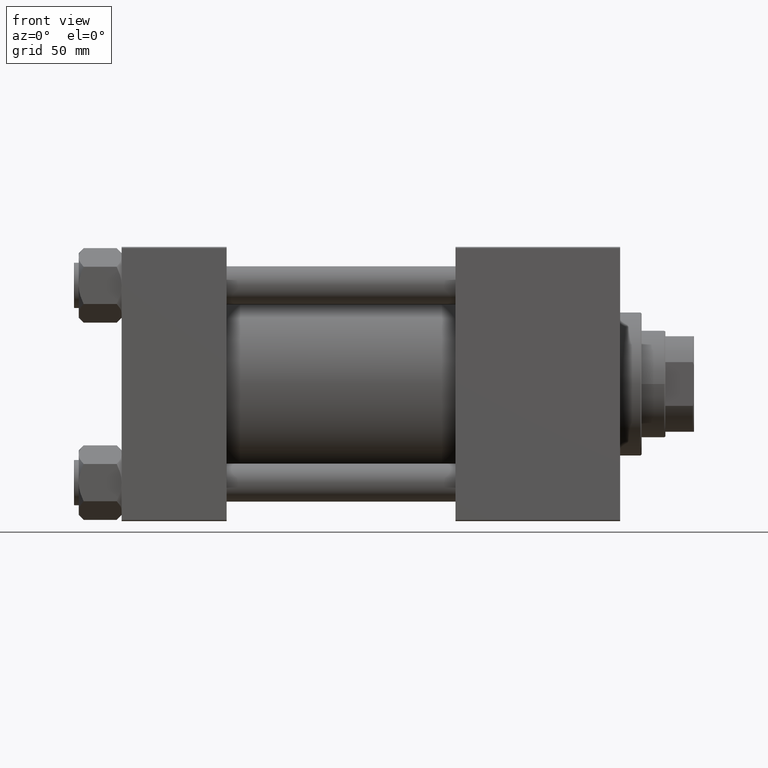
[diagram: clean part render]
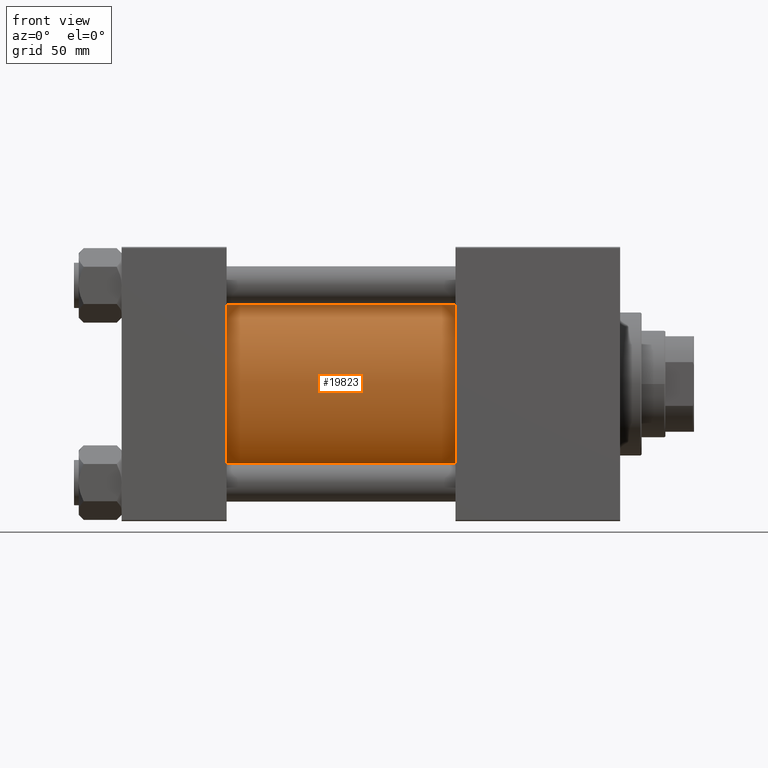
[diagram: same view with one face highlighted and labeled with its STEP entity id]
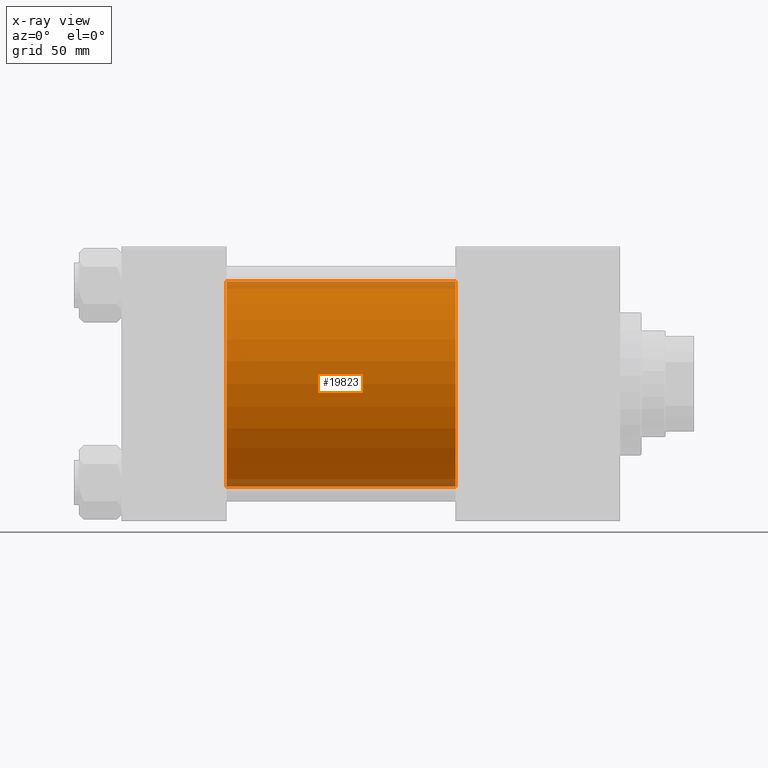
[diagram: x-ray of the same camera — body ghosted, the highlighted face saturated]
A machine part, front view. The second image highlights one B-rep face of the part: STEP entity #19823.
The next image is the same camera in x-ray: the body ghosted, the highlighted face saturated — about 7% of this face is hidden behind the body in this view.
In plain terms, the highlighted cylindrical surface (partial cylindrical patch) has radius 43 mm, axis along (-1, -0, -0).
Its self-contained STEP definition (entity closure, byte-faithful):
#2070 = CARTESIAN_POINT ( 'NONE',  ( 140.0000000000000000, -2.602085213965210642E-15, 0.000000000000000000 ) ) ;
#2189 = AXIS2_PLACEMENT_3D ( 'NONE', #6541, #26025, #33999 ) ;
#4545 = CARTESIAN_POINT ( 'NONE',  ( 44.00000000000000000, -2.602085213965210642E-15, 0.000000000000000000 ) ) ;
#5167 = EDGE_CURVE ( 'NONE', #26153, #25468, #7427, .T. ) ;
#6541 = CARTESIAN_POINT ( 'NONE',  ( 140.0000000000000000, -2.602085213965210642E-15, 0.000000000000000000 ) ) ;
#6915 = ORIENTED_EDGE ( 'NONE', *, *, #28298, .F. ) ;
#7427 = LINE ( 'NONE', #27942, #18612 ) ;
#9211 = VERTEX_POINT ( 'NONE', #45285 ) ;
#10968 = VERTEX_POINT ( 'NONE', #27021 ) ;
#11006 = DIRECTION ( 'NONE',  ( -1.000000000000000000, -0.000000000000000000, -0.000000000000000000 ) ) ;
#11755 = EDGE_LOOP ( 'NONE', ( #13839, #6915, #37044, #46581 ) ) ;
#12175 = DIRECTION ( 'NONE',  ( -1.000000000000000000, -0.000000000000000000, -0.000000000000000000 ) ) ;
#13839 = ORIENTED_EDGE ( 'NONE', *, *, #5167, .F. ) ;
#16591 = DIRECTION ( 'NONE',  ( 0.000000000000000000, 0.000000000000000000, 1.000000000000000000 ) ) ;
#17658 = VECTOR ( 'NONE', #12175, 1000.000000000000000 ) ;
#18612 = VECTOR ( 'NONE', #39756, 1000.000000000000000 ) ;
#19823 = ADVANCED_FACE ( 'NONE', ( #21804 ), #21551, .T. ) ;
#20436 = DIRECTION ( 'NONE',  ( 1.000000000000000000, -0.000000000000000000, 0.000000000000000000 ) ) ;
#21551 = CYLINDRICAL_SURFACE ( 'NONE', #33756, 43.00000000000000000 ) ;
#21804 = FACE_OUTER_BOUND ( 'NONE', #11755, .T. ) ;
#22903 = CARTESIAN_POINT ( 'NONE',  ( 44.00000000000000000, 2.663896022368408223E-15, -43.00000000000000000 ) ) ;
#25468 = VERTEX_POINT ( 'NONE', #22903 ) ;
#26025 = DIRECTION ( 'NONE',  ( 1.000000000000000000, 0.000000000000000000, 0.000000000000000000 ) ) ;
#26153 = VERTEX_POINT ( 'NONE', #37368 ) ;
#27021 = CARTESIAN_POINT ( 'NONE',  ( 140.0000000000000000, -2.602085213965210642E-15, 43.00000000000000000 ) ) ;
#27942 = CARTESIAN_POINT ( 'NONE',  ( 140.0000000000000000, 2.663896022368408223E-15, -43.00000000000000000 ) ) ;
#28298 = EDGE_CURVE ( 'NONE', #10968, #26153, #34181, .T. ) ;
#30035 = DIRECTION ( 'NONE',  ( 0.000000000000000000, 0.000000000000000000, 1.000000000000000000 ) ) ;
#33756 = AXIS2_PLACEMENT_3D ( 'NONE', #2070, #11006, #30035 ) ;
#33999 = DIRECTION ( 'NONE',  ( 0.000000000000000000, 0.000000000000000000, -1.000000000000000000 ) ) ;
#34181 = CIRCLE ( 'NONE', #2189, 43.00000000000000000 ) ;
#35569 = AXIS2_PLACEMENT_3D ( 'NONE', #4545, #20436, #16591 ) ;
#37044 = ORIENTED_EDGE ( 'NONE', *, *, #47903, .T. ) ;
#37368 = CARTESIAN_POINT ( 'NONE',  ( 140.0000000000000000, 2.663896022368408223E-15, -43.00000000000000000 ) ) ;
#39756 = DIRECTION ( 'NONE',  ( -1.000000000000000000, -0.000000000000000000, -0.000000000000000000 ) ) ;
#39912 = CARTESIAN_POINT ( 'NONE',  ( 140.0000000000000000, -2.602085213965210642E-15, 43.00000000000000000 ) ) ;
#40627 = EDGE_CURVE ( 'NONE', #9211, #25468, #44624, .T. ) ;
#44624 = CIRCLE ( 'NONE', #35569, 43.00000000000000000 ) ;
#45285 = CARTESIAN_POINT ( 'NONE',  ( 44.00000000000000000, -2.602085213965210642E-15, 43.00000000000000000 ) ) ;
#46581 = ORIENTED_EDGE ( 'NONE', *, *, #40627, .T. ) ;
#47654 = LINE ( 'NONE', #39912, #17658 ) ;
#47903 = EDGE_CURVE ( 'NONE', #10968, #9211, #47654, .T. ) ;